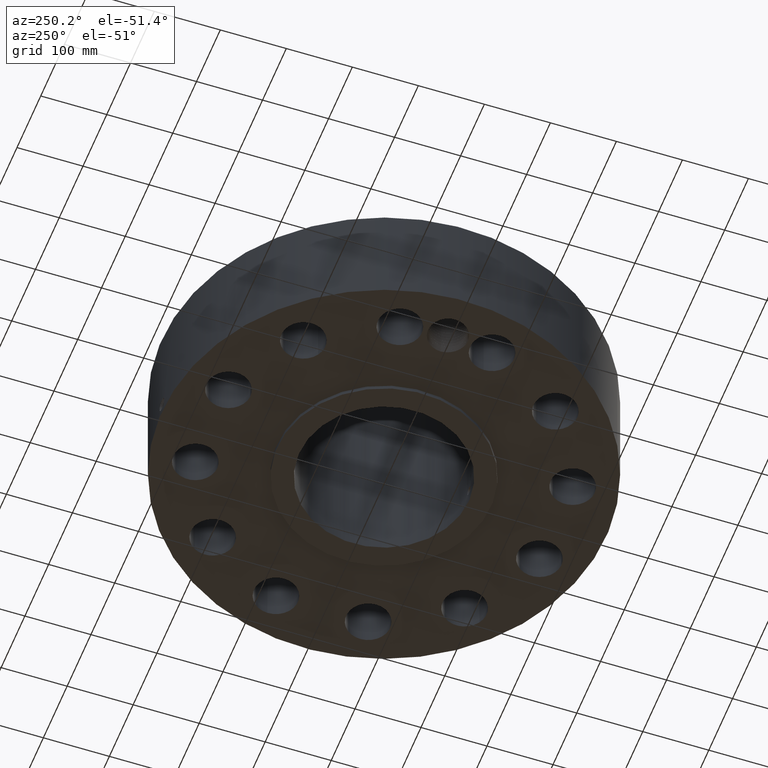
[diagram: clean part render]
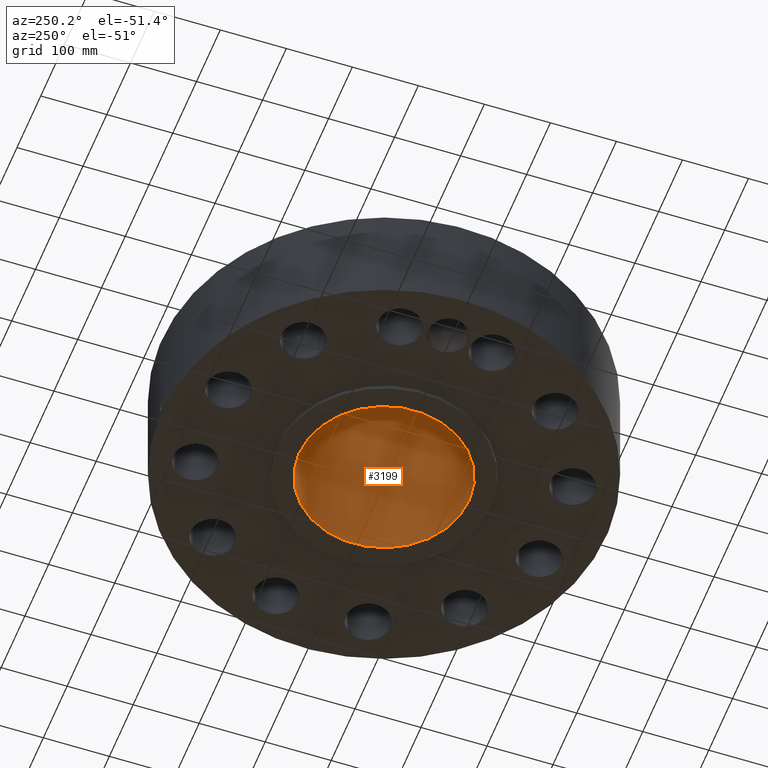
[diagram: same view with one face highlighted and labeled with its STEP entity id]
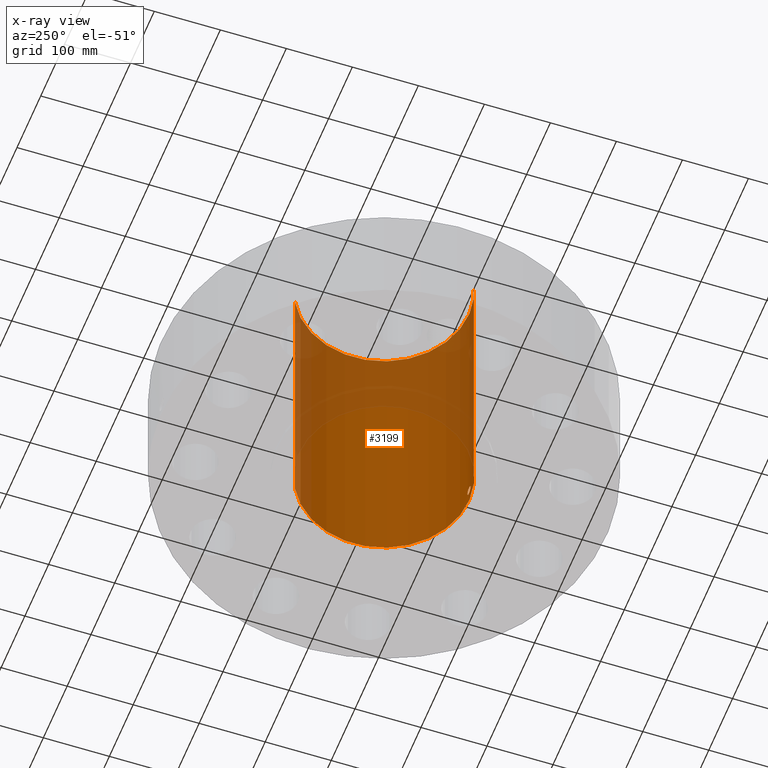
[diagram: x-ray of the same camera — body ghosted, the highlighted face saturated]
A machine part, auxiliary view. The second image highlights one B-rep face of the part: STEP entity #3199.
The next image is the same camera in x-ray: the body ghosted, the highlighted face saturated — about 40% of this face is hidden behind the body in this view.
In plain terms, the highlighted cylindrical surface (partial cylindrical patch) has radius 128.727 mm, axis along (0, 0, -1).
Its self-contained STEP definition (entity closure, byte-faithful):
#2357=AXIS2_PLACEMENT_3D('Circle Axis2P3D',#2355,#2356,$) ;
#3130=AXIS2_PLACEMENT_3D('Cylinder Axis2P3D',#3127,#3128,#3129) ;
#3134=AXIS2_PLACEMENT_3D('Circle Axis2P3D',#3132,#3133,$) ;
#2355=CARTESIAN_POINT('Axis2P3D Location',(0.,0.,0.)) ;
#2359=CARTESIAN_POINT('Vertex',(2.42972862966,4.44758842368,-1.45465441967E-014)) ;
#2361=CARTESIAN_POINT('Vertex',(-2.42972862966,-4.44758842368,-1.45465441967E-014)) ;
#3127=CARTESIAN_POINT('Axis2P3D Location',(0.,0.,8.37500000003)) ;
#3132=CARTESIAN_POINT('Axis2P3D Location',(0.,0.,16.7500000001)) ;
#3136=CARTESIAN_POINT('Vertex',(2.42972862966,4.44758842368,16.7500000001)) ;
#3138=CARTESIAN_POINT('Vertex',(-2.42972862966,-4.44758842368,16.7500000001)) ;
#3141=CARTESIAN_POINT('Line Origine',(2.42972862966,4.44758842368,8.37500000003)) ;
#3146=CARTESIAN_POINT('Line Origine',(-2.42972862966,-4.44758842368,8.37500000003)) ;
#3158=CARTESIAN_POINT('Control Point',(0.219395640473,-5.06324891282,0.820143615352)) ;
#3159=CARTESIAN_POINT('Control Point',(0.206921719491,-5.06378942029,0.797310256152)) ;
#3160=CARTESIAN_POINT('Control Point',(0.191478259984,-5.06442011497,0.77610131962)) ;
#3161=CARTESIAN_POINT('Control Point',(0.173345217381,-5.06509226609,0.757029760997)) ;
#3162=CARTESIAN_POINT('Control Point',(0.112136795129,-5.06703633096,0.707551063621)) ;
#3163=CARTESIAN_POINT('Control Point',(0.0349822800674,-5.06829938306,0.684026557525)) ;
#3164=CARTESIAN_POINT('Control Point',(-0.0195598942473,-5.06839375583,0.682387718762)) ;
#3165=CARTESIAN_POINT('Control Point',(-0.12414513038,-5.06700352883,0.707529844775)) ;
#3166=CARTESIAN_POINT('Control Point',(-0.203189946654,-5.06412590488,0.780440794183)) ;
#3167=CARTESIAN_POINT('Control Point',(-0.232166968346,-5.06270914309,0.826655447646)) ;
#3168=CARTESIAN_POINT('Control Point',(-0.255833238283,-5.06154277102,0.904811736335)) ;
#3169=CARTESIAN_POINT('Control Point',(-0.248295655353,-5.0619139393,0.984200357166)) ;
#3170=CARTESIAN_POINT('Control Point',(-0.24206157262,-5.06222543809,1.01078347778)) ;
#3171=CARTESIAN_POINT('Control Point',(-0.23232338894,-5.06268874054,1.03619229982)) ;
#3172=CARTESIAN_POINT('Control Point',(-0.219395640473,-5.06324891282,1.05985638466)) ;
#3173=CARTESIAN_POINT('Vertex',(0.219395640473,-5.06324891282,0.820143615352)) ;
#3175=CARTESIAN_POINT('Vertex',(-0.219395640473,-5.06324891282,1.05985638466)) ;
#3179=CARTESIAN_POINT('Control Point',(-0.219395640473,-5.06324891282,1.05985638466)) ;
#3180=CARTESIAN_POINT('Control Point',(-0.206921719501,-5.06378942029,1.08268974384)) ;
#3181=CARTESIAN_POINT('Control Point',(-0.191478260008,-5.06442011497,1.10389868035)) ;
#3182=CARTESIAN_POINT('Control Point',(-0.173345217351,-5.0650922661,1.12297023903)) ;
#3183=CARTESIAN_POINT('Control Point',(-0.112136795111,-5.06703633096,1.17244893639)) ;
#3184=CARTESIAN_POINT('Control Point',(-0.0349822800697,-5.06829938306,1.19597344248)) ;
#3185=CARTESIAN_POINT('Control Point',(0.0195598942452,-5.06839375583,1.19761228125)) ;
#3186=CARTESIAN_POINT('Control Point',(0.124145130402,-5.06700352883,1.17247015523)) ;
#3187=CARTESIAN_POINT('Control Point',(0.203189946687,-5.06412590488,1.09955920579)) ;
#3188=CARTESIAN_POINT('Control Point',(0.232166968332,-5.06270914309,1.05334455241)) ;
#3189=CARTESIAN_POINT('Control Point',(0.255833238282,-5.06154277102,0.975188263709)) ;
#3190=CARTESIAN_POINT('Control Point',(0.248295655356,-5.0619139393,0.895799642866)) ;
#3191=CARTESIAN_POINT('Control Point',(0.242061572612,-5.06222543809,0.869216522205)) ;
#3192=CARTESIAN_POINT('Control Point',(0.232323388935,-5.06268874054,0.843807700181)) ;
#3193=CARTESIAN_POINT('Control Point',(0.219395640473,-5.06324891282,0.820143615352)) ;
#2356=DIRECTION('Axis2P3D Direction',(0.,0.,-0.0393700787402)) ;
#3128=DIRECTION('Axis2P3D Direction',(0.,0.,-0.0393700787402)) ;
#3129=DIRECTION('Axis2P3D XDirection',(-0.0188750212049,-0.0345504945626,0.)) ;
#3133=DIRECTION('Axis2P3D Direction',(0.,0.,-0.0393700787402)) ;
#3142=DIRECTION('Vector Direction',(0.,0.,-0.0393700787402)) ;
#3147=DIRECTION('Vector Direction',(0.,0.,-0.0393700787402)) ;
#3143=VECTOR('Line Direction',#3142,0.0393700787402) ;
#3148=VECTOR('Line Direction',#3147,0.0393700787402) ;
#3152=ORIENTED_EDGE('',*,*,#3140,.F.) ;
#3153=ORIENTED_EDGE('',*,*,#3145,.T.) ;
#3154=ORIENTED_EDGE('',*,*,#2363,.T.) ;
#3155=ORIENTED_EDGE('',*,*,#3150,.F.) ;
#3196=ORIENTED_EDGE('',*,*,#3177,.F.) ;
#3197=ORIENTED_EDGE('',*,*,#3194,.F.) ;
#3198=FACE_BOUND('',#3195,.T.) ;
#3199=ADVANCED_FACE('PartBody',(#3156,#3198),#3131,.F.) ;
#3157=B_SPLINE_CURVE_WITH_KNOTS('',5,(#3158,#3159,#3160,#3161,#3162,#3163,#3164,#3165,#3166,#3167,#3168,#3169,#3170,#3171,#3172),.UNSPECIFIED.,.F.,.U.,(6,3,3,3,6),(0.,4.67405947369,14.022123911,23.3721121528,28.216223742),.UNSPECIFIED.) ;
#3178=B_SPLINE_CURVE_WITH_KNOTS('',5,(#3179,#3180,#3181,#3182,#3183,#3184,#3185,#3186,#3187,#3188,#3189,#3190,#3191,#3192,#3193),.UNSPECIFIED.,.F.,.U.,(6,3,3,3,6),(0.,4.67405947006,14.0221239073,23.3721121533,28.2162237406),.UNSPECIFIED.) ;
#2358=CIRCLE('generated circle',#2357,5.06800000002) ;
#3135=CIRCLE('generated circle',#3134,5.06800000002) ;
#3131=CYLINDRICAL_SURFACE('generated cylinder',#3130,5.06800000002) ;
#2363=EDGE_CURVE('',#2360,#2362,#2358,.T.) ;
#3140=EDGE_CURVE('',#3137,#3139,#3135,.T.) ;
#3145=EDGE_CURVE('',#3137,#2360,#3144,.T.) ;
#3150=EDGE_CURVE('',#3139,#2362,#3149,.T.) ;
#3177=EDGE_CURVE('',#3174,#3176,#3157,.T.) ;
#3194=EDGE_CURVE('',#3176,#3174,#3178,.T.) ;
#3151=EDGE_LOOP('',(#3152,#3153,#3154,#3155)) ;
#3195=EDGE_LOOP('',(#3196,#3197)) ;
#3156=FACE_OUTER_BOUND('',#3151,.T.) ;
#3144=LINE('Line',#3141,#3143) ;
#3149=LINE('Line',#3146,#3148) ;
#2360=VERTEX_POINT('',#2359) ;
#2362=VERTEX_POINT('',#2361) ;
#3137=VERTEX_POINT('',#3136) ;
#3139=VERTEX_POINT('',#3138) ;
#3174=VERTEX_POINT('',#3173) ;
#3176=VERTEX_POINT('',#3175) ;